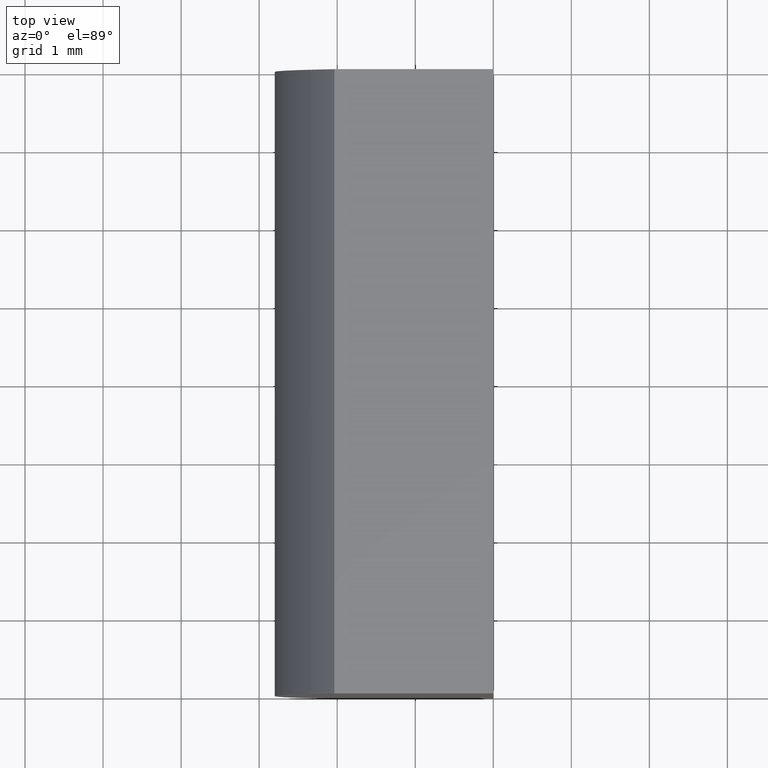
[diagram: clean part render]
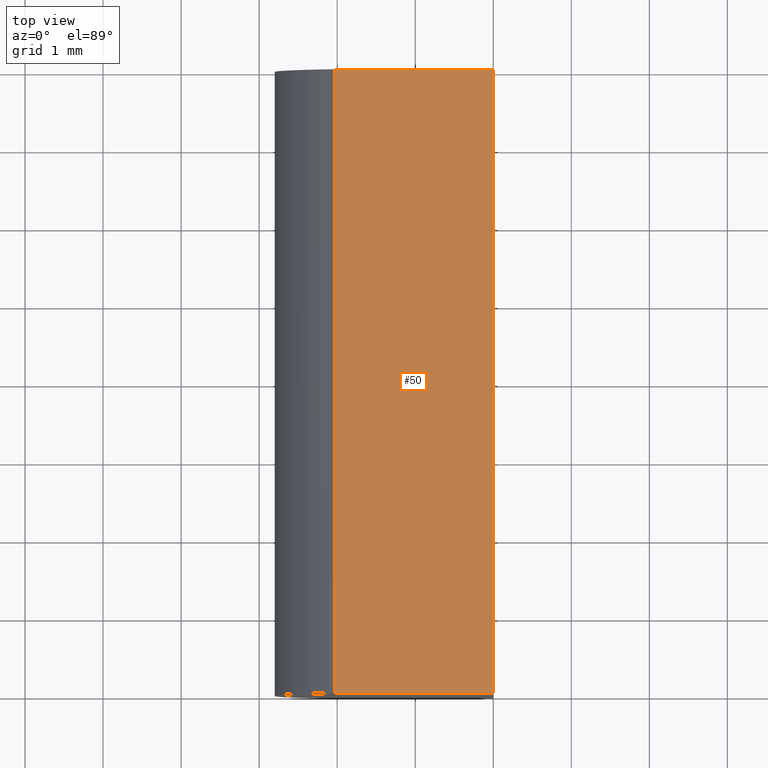
[diagram: same view with one face highlighted and labeled with its STEP entity id]
A machine part, top view. The second image highlights one B-rep face of the part: STEP entity #50.
In plain terms, the highlighted planar face has unit normal (0, 0, -1).
Its self-contained STEP definition (entity closure, byte-faithful):
#2 = EDGE_CURVE ( 'NONE', #172, #158, #85, .T. ) ;
#4 = ORIENTED_EDGE ( 'NONE', *, *, #24, .T. ) ;
#7 = CARTESIAN_POINT ( 'NONE',  ( 0.0000000000000000000, 0.0000000000000000000, 4.000000000000000000 ) ) ;
#8 = AXIS2_PLACEMENT_3D ( 'NONE', #155, #36, #48 ) ;
#12 = CARTESIAN_POINT ( 'NONE',  ( -2.036067977499788700, 8.000000000000000000, 4.000000000000000000 ) ) ;
#14 = VECTOR ( 'NONE', #162, 1000.000000000000000 ) ;
#17 = VECTOR ( 'NONE', #39, 1000.000000000000000 ) ;
#22 = FACE_OUTER_BOUND ( 'NONE', #143, .T. ) ;
#24 = EDGE_CURVE ( 'NONE', #172, #33, #69, .T. ) ;
#33 = VERTEX_POINT ( 'NONE', #149 ) ;
#36 = DIRECTION ( 'NONE',  ( 0.0000000000000000000, 0.0000000000000000000, -1.000000000000000000 ) ) ;
#37 = VERTEX_POINT ( 'NONE', #145 ) ;
#39 = DIRECTION ( 'NONE',  ( 1.000000000000000000, -0.0000000000000000000, -0.0000000000000000000 ) ) ;
#40 = LINE ( 'NONE', #44, #72 ) ;
#44 = CARTESIAN_POINT ( 'NONE',  ( 0.0000000000000000000, 8.000000000000000000, 4.000000000000000000 ) ) ;
#45 = ORIENTED_EDGE ( 'NONE', *, *, #71, .T. ) ;
#48 = DIRECTION ( 'NONE',  ( -1.000000000000000000, 0.0000000000000000000, -0.0000000000000000000 ) ) ;
#50 = ADVANCED_FACE ( 'NONE', ( #22 ), #98, .F. ) ;
#69 = LINE ( 'NONE', #159, #170 ) ;
#71 = EDGE_CURVE ( 'NONE', #33, #37, #113, .T. ) ;
#72 = VECTOR ( 'NONE', #120, 1000.000000000000000 ) ;
#80 = EDGE_CURVE ( 'NONE', #158, #37, #40, .T. ) ;
#82 = ORIENTED_EDGE ( 'NONE', *, *, #2, .F. ) ;
#85 = LINE ( 'NONE', #199, #17 ) ;
#98 = PLANE ( 'NONE',  #8 ) ;
#113 = LINE ( 'NONE', #7, #14 ) ;
#120 = DIRECTION ( 'NONE',  ( -0.0000000000000000000, -1.000000000000000000, -0.0000000000000000000 ) ) ;
#129 = ORIENTED_EDGE ( 'NONE', *, *, #80, .F. ) ;
#137 = DIRECTION ( 'NONE',  ( -0.0000000000000000000, -1.000000000000000000, -0.0000000000000000000 ) ) ;
#143 = EDGE_LOOP ( 'NONE', ( #45, #129, #82, #4 ) ) ;
#145 = CARTESIAN_POINT ( 'NONE',  ( 0.0000000000000000000, 0.0000000000000000000, 4.000000000000000000 ) ) ;
#149 = CARTESIAN_POINT ( 'NONE',  ( -2.036067977499788700, 0.0000000000000000000, 4.000000000000000000 ) ) ;
#155 = CARTESIAN_POINT ( 'NONE',  ( 0.0000000000000000000, 8.000000000000000000, 4.000000000000000000 ) ) ;
#158 = VERTEX_POINT ( 'NONE', #173 ) ;
#159 = CARTESIAN_POINT ( 'NONE',  ( -2.036067977499788700, 8.000000000000000000, 4.000000000000000000 ) ) ;
#162 = DIRECTION ( 'NONE',  ( 1.000000000000000000, -0.0000000000000000000, -0.0000000000000000000 ) ) ;
#170 = VECTOR ( 'NONE', #137, 1000.000000000000000 ) ;
#172 = VERTEX_POINT ( 'NONE', #12 ) ;
#173 = CARTESIAN_POINT ( 'NONE',  ( 0.0000000000000000000, 8.000000000000000000, 4.000000000000000000 ) ) ;
#199 = CARTESIAN_POINT ( 'NONE',  ( 0.0000000000000000000, 8.000000000000000000, 4.000000000000000000 ) ) ;